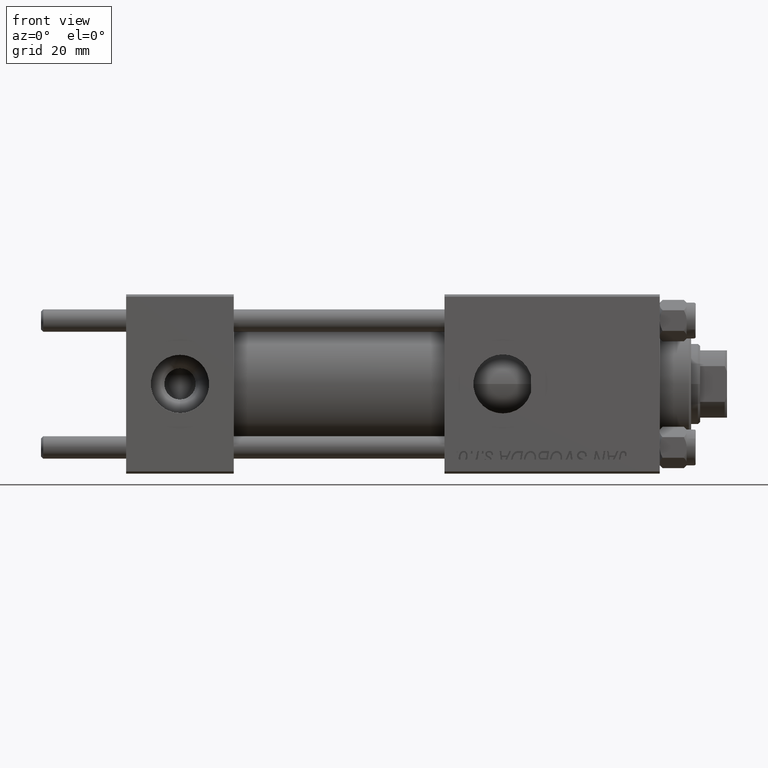
[diagram: clean part render]
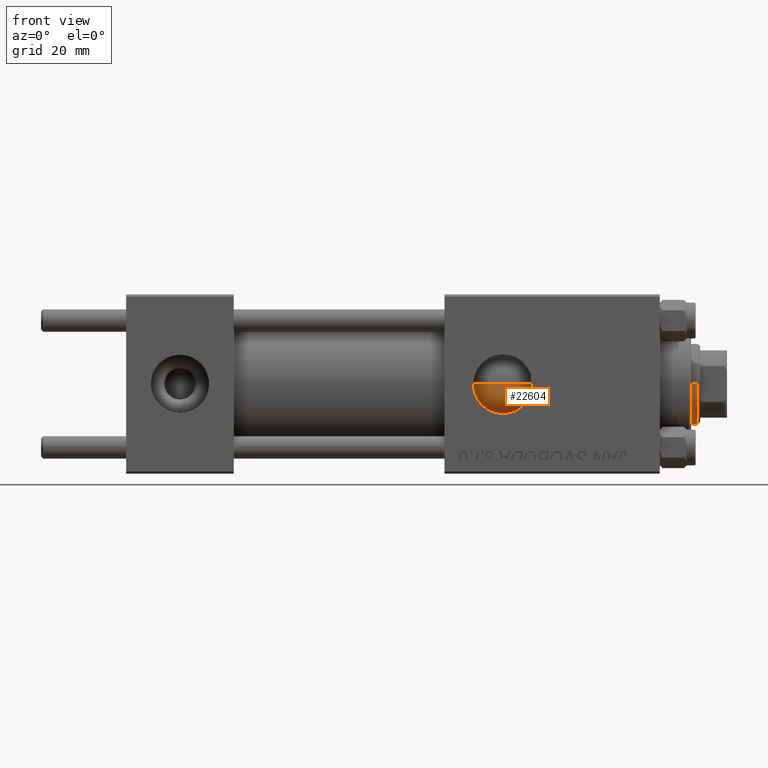
[diagram: same view with one face highlighted and labeled with its STEP entity id]
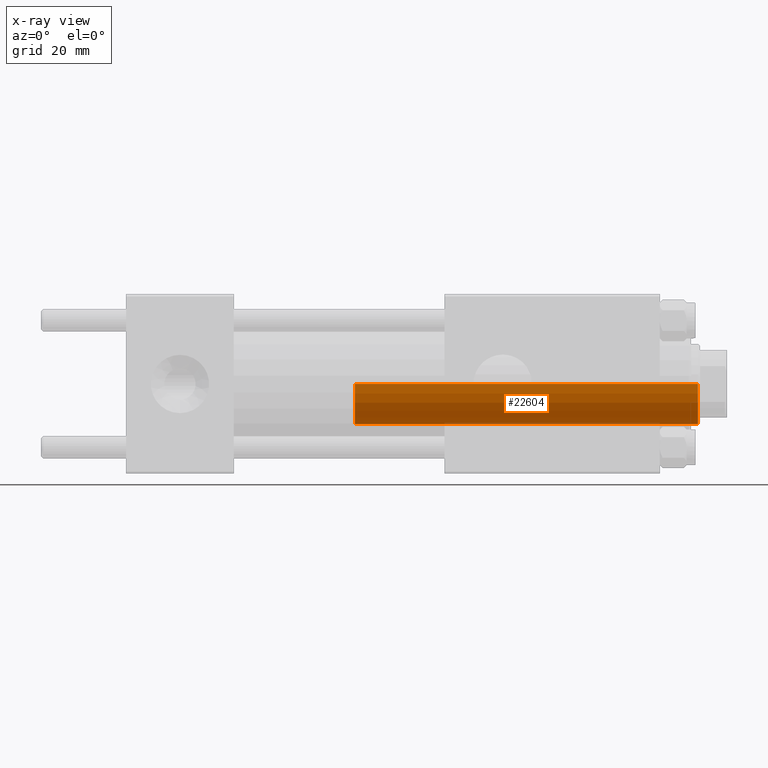
[diagram: x-ray of the same camera — body ghosted, the highlighted face saturated]
A machine part, front view. The second image highlights one B-rep face of the part: STEP entity #22604.
The next image is the same camera in x-ray: the body ghosted, the highlighted face saturated — about 2% of this face is hidden behind the body in this view.
In plain terms, the highlighted cylindrical surface (partial cylindrical patch) has radius 9 mm, axis along (-1, 0, 0).
Its self-contained STEP definition (entity closure, byte-faithful):
#771 = DIRECTION ( 'NONE',  ( 0.000000000000000000, 0.000000000000000000, 1.000000000000000000 ) ) ;
#2471 = LINE ( 'NONE', #43983, #28653 ) ;
#2848 = CIRCLE ( 'NONE', #33376, 9.000000000000000000 ) ;
#3085 = ORIENTED_EDGE ( 'NONE', *, *, #15012, .T. ) ;
#5172 = DIRECTION ( 'NONE',  ( 1.000000000000000000, 0.000000000000000000, 0.000000000000000000 ) ) ;
#5332 = EDGE_CURVE ( 'NONE', #37419, #22577, #18918, .T. ) ;
#6837 = CARTESIAN_POINT ( 'NONE',  ( -9.000000000000000000, 0.000000000000000000, 104.0000000000000000 ) ) ;
#9304 = VERTEX_POINT ( 'NONE', #20060 ) ;
#10422 = CYLINDRICAL_SURFACE ( 'NONE', #26366, 9.000000000000000000 ) ;
#11118 = ORIENTED_EDGE ( 'NONE', *, *, #5332, .F. ) ;
#11173 = CARTESIAN_POINT ( 'NONE',  ( -9.000000000000000000, 0.000000000000000000, 103.5000000000000000 ) ) ;
#13882 = VECTOR ( 'NONE', #14390, 1000.000000000000000 ) ;
#14390 = DIRECTION ( 'NONE',  ( -0.000000000000000000, -0.000000000000000000, -1.000000000000000000 ) ) ;
#15012 = EDGE_CURVE ( 'NONE', #30256, #9304, #2471, .T. ) ;
#16528 = CIRCLE ( 'NONE', #24575, 9.000000000000000000 ) ;
#18918 = LINE ( 'NONE', #6837, #13882 ) ;
#20060 = CARTESIAN_POINT ( 'NONE',  ( 9.000000000000000000, 1.102182119232617714E-15, 27.00000000000000000 ) ) ;
#21648 = ORIENTED_EDGE ( 'NONE', *, *, #47729, .T. ) ;
#22277 = DIRECTION ( 'NONE',  ( -1.000000000000000000, 0.000000000000000000, 0.000000000000000000 ) ) ;
#22577 = VERTEX_POINT ( 'NONE', #49142 ) ;
#22604 = ADVANCED_FACE ( 'NONE', ( #37603 ), #10422, .T. ) ;
#24575 = AXIS2_PLACEMENT_3D ( 'NONE', #27714, #771, #26972 ) ;
#25783 = CARTESIAN_POINT ( 'NONE',  ( 0.000000000000000000, 0.000000000000000000, 104.0000000000000000 ) ) ;
#26366 = AXIS2_PLACEMENT_3D ( 'NONE', #25783, #41110, #22277 ) ;
#26972 = DIRECTION ( 'NONE',  ( 1.000000000000000000, 0.000000000000000000, 0.000000000000000000 ) ) ;
#27714 = CARTESIAN_POINT ( 'NONE',  ( 0.000000000000000000, 0.000000000000000000, 27.00000000000000000 ) ) ;
#28653 = VECTOR ( 'NONE', #28662, 1000.000000000000000 ) ;
#28662 = DIRECTION ( 'NONE',  ( -0.000000000000000000, -0.000000000000000000, -1.000000000000000000 ) ) ;
#30256 = VERTEX_POINT ( 'NONE', #34398 ) ;
#33376 = AXIS2_PLACEMENT_3D ( 'NONE', #36845, #44630, #5172 ) ;
#34382 = EDGE_LOOP ( 'NONE', ( #21648, #3085, #42282, #11118 ) ) ;
#34398 = CARTESIAN_POINT ( 'NONE',  ( 9.000000000000000000, 1.102182119232617714E-15, 103.5000000000000000 ) ) ;
#36845 = CARTESIAN_POINT ( 'NONE',  ( 0.000000000000000000, 0.000000000000000000, 103.5000000000000000 ) ) ;
#37419 = VERTEX_POINT ( 'NONE', #11173 ) ;
#37603 = FACE_OUTER_BOUND ( 'NONE', #34382, .T. ) ;
#41110 = DIRECTION ( 'NONE',  ( -0.000000000000000000, -0.000000000000000000, -1.000000000000000000 ) ) ;
#42282 = ORIENTED_EDGE ( 'NONE', *, *, #48848, .T. ) ;
#43983 = CARTESIAN_POINT ( 'NONE',  ( 9.000000000000000000, 1.102182119232617714E-15, 104.0000000000000000 ) ) ;
#44630 = DIRECTION ( 'NONE',  ( 0.000000000000000000, 0.000000000000000000, -1.000000000000000000 ) ) ;
#47729 = EDGE_CURVE ( 'NONE', #37419, #30256, #2848, .T. ) ;
#48848 = EDGE_CURVE ( 'NONE', #9304, #22577, #16528, .T. ) ;
#49142 = CARTESIAN_POINT ( 'NONE',  ( -9.000000000000000000, 0.000000000000000000, 27.00000000000000000 ) ) ;